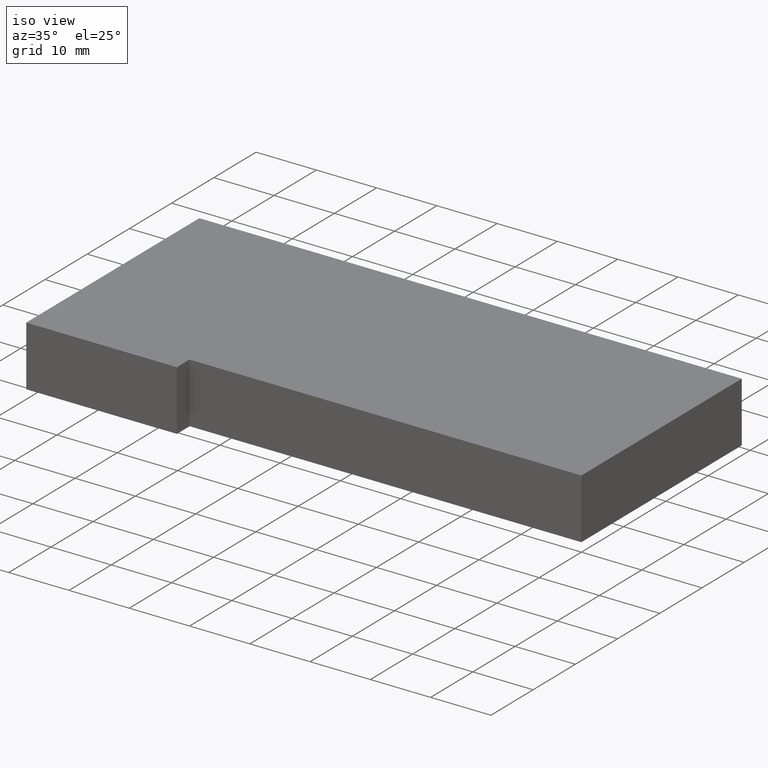
[diagram: clean part render]
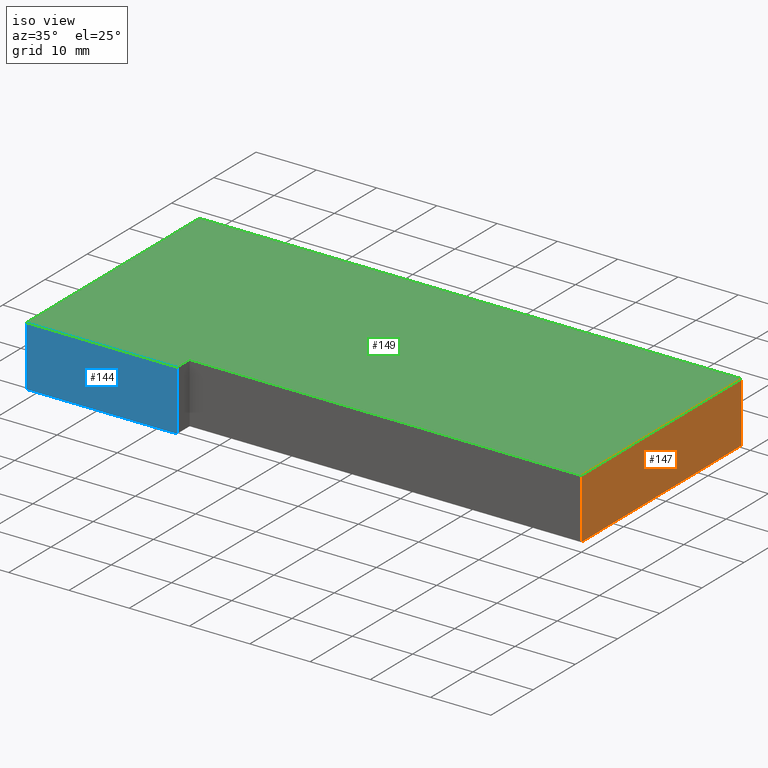
[diagram: same view with three faces highlighted in distinct colors, each labeled with its STEP entity id]
A machine part, iso view with three faces highlighted in distinct colors.
Their STEP definitions:

[orange] entity #147 — the highlighted planar face has unit normal (1, 0, 0).
#21=FACE_OUTER_BOUND('',#29,.T.);
#29=EDGE_LOOP('',(#120,#121,#122,#123));
#32=LINE('',#221,#50);
#46=LINE('',#248,#64);
#47=LINE('',#251,#65);
#48=LINE('',#252,#66);
#50=VECTOR('',#185,10.);
#64=VECTOR('',#207,10.);
#65=VECTOR('',#210,10.);
#66=VECTOR('',#211,10.);
#68=VERTEX_POINT('',#219);
#69=VERTEX_POINT('',#220);
#78=VERTEX_POINT('',#246);
#79=VERTEX_POINT('',#250);
#80=EDGE_CURVE('',#68,#69,#32,.T.);
#94=EDGE_CURVE('',#78,#69,#46,.T.);
#95=EDGE_CURVE('',#78,#79,#47,.T.);
#96=EDGE_CURVE('',#68,#79,#48,.T.);
#120=ORIENTED_EDGE('',*,*,#95,.T.);
#121=ORIENTED_EDGE('',*,*,#96,.F.);
#122=ORIENTED_EDGE('',*,*,#80,.T.);
#123=ORIENTED_EDGE('',*,*,#94,.F.);
#139=PLANE('',#178);
#147=ADVANCED_FACE('',(#21),#139,.T.);
#178=AXIS2_PLACEMENT_3D('',#249,#208,#209);
#185=DIRECTION('',(-3.06161699786838E-16,1.,0.));
#207=DIRECTION('',(0.,0.,-1.));
#208=DIRECTION('center_axis',(1.,3.06161699786838E-16,0.));
#209=DIRECTION('ref_axis',(0.,0.,-1.));
#210=DIRECTION('',(3.06161699786838E-16,-1.,0.));
#211=DIRECTION('',(0.,0.,1.));
#219=CARTESIAN_POINT('',(3.00678215216002E-15,2.22044604925031E-15,-5.));
#220=CARTESIAN_POINT('',(-8.62736243973984E-15,38.,-5.));
#221=CARTESIAN_POINT('',(-8.62736243973984E-15,38.,-5.));
#246=CARTESIAN_POINT('',(-8.62736243973984E-15,38.,5.));
#248=CARTESIAN_POINT('',(-8.62736243973984E-15,38.,0.));
#249=CARTESIAN_POINT('Origin',(-8.62736243973984E-15,38.,0.));
#250=CARTESIAN_POINT('',(3.00678215216002E-15,2.22044604925031E-15,5.));
#251=CARTESIAN_POINT('',(-8.62736243973984E-15,38.,5.));
#252=CARTESIAN_POINT('',(3.00678215216002E-15,2.22044604925031E-15,0.));

[blue] entity #144 — the highlighted planar face has unit normal (0, -1, 0).
#18=FACE_OUTER_BOUND('',#26,.T.);
#26=EDGE_LOOP('',(#108,#109,#110,#111));
#35=LINE('',#227,#53);
#39=LINE('',#235,#57);
#41=LINE('',#239,#59);
#42=LINE('',#240,#60);
#53=VECTOR('',#188,10.);
#57=VECTOR('',#194,10.);
#59=VECTOR('',#198,10.);
#60=VECTOR('',#199,10.);
#71=VERTEX_POINT('',#224);
#72=VERTEX_POINT('',#226);
#75=VERTEX_POINT('',#233);
#76=VERTEX_POINT('',#238);
#83=EDGE_CURVE('',#72,#71,#35,.T.);
#87=EDGE_CURVE('',#75,#71,#39,.T.);
#89=EDGE_CURVE('',#75,#76,#41,.T.);
#90=EDGE_CURVE('',#76,#72,#42,.T.);
#108=ORIENTED_EDGE('',*,*,#89,.T.);
#109=ORIENTED_EDGE('',*,*,#90,.T.);
#110=ORIENTED_EDGE('',*,*,#83,.T.);
#111=ORIENTED_EDGE('',*,*,#87,.F.);
#136=PLANE('',#175);
#144=ADVANCED_FACE('',(#18),#136,.T.);
#175=AXIS2_PLACEMENT_3D('',#237,#196,#197);
#188=DIRECTION('',(1.,3.5527136788005E-16,0.));
#194=DIRECTION('',(0.,0.,-1.));
#196=DIRECTION('center_axis',(3.5527136788005E-16,-1.,0.));
#197=DIRECTION('ref_axis',(0.,0.,-1.));
#198=DIRECTION('',(-1.,-3.5527136788005E-16,0.));
#199=DIRECTION('',(0.,0.,-1.));
#224=CARTESIAN_POINT('',(-65.,-3.00000000000002,-5.));
#226=CARTESIAN_POINT('',(-90.,-3.00000000000002,-5.));
#227=CARTESIAN_POINT('',(-65.,-3.00000000000002,-5.));
#233=CARTESIAN_POINT('',(-65.,-3.00000000000002,5.));
#235=CARTESIAN_POINT('',(-65.,-3.00000000000002,0.));
#237=CARTESIAN_POINT('Origin',(-65.,-3.00000000000002,0.));
#238=CARTESIAN_POINT('',(-90.,-3.00000000000002,5.));
#239=CARTESIAN_POINT('',(-65.,-3.00000000000002,5.));
#240=CARTESIAN_POINT('',(-90.,-3.00000000000002,0.));

[green] entity #149 — the highlighted planar face has unit normal (0, 0, 1).
#23=FACE_OUTER_BOUND('',#31,.T.);
#31=EDGE_LOOP('',(#128,#129,#130,#131,#132,#133));
#38=LINE('',#234,#56);
#41=LINE('',#239,#59);
#43=LINE('',#243,#61);
#45=LINE('',#247,#63);
#47=LINE('',#251,#65);
#49=LINE('',#254,#67);
#56=VECTOR('',#193,10.);
#59=VECTOR('',#198,10.);
#61=VECTOR('',#202,10.);
#63=VECTOR('',#206,10.);
#65=VECTOR('',#210,10.);
#67=VECTOR('',#214,10.);
#74=VERTEX_POINT('',#232);
#75=VERTEX_POINT('',#233);
#76=VERTEX_POINT('',#238);
#77=VERTEX_POINT('',#242);
#78=VERTEX_POINT('',#246);
#79=VERTEX_POINT('',#250);
#86=EDGE_CURVE('',#74,#75,#38,.T.);
#89=EDGE_CURVE('',#75,#76,#41,.T.);
#91=EDGE_CURVE('',#76,#77,#43,.T.);
#93=EDGE_CURVE('',#77,#78,#45,.T.);
#95=EDGE_CURVE('',#78,#79,#47,.T.);
#97=EDGE_CURVE('',#79,#74,#49,.T.);
#128=ORIENTED_EDGE('',*,*,#86,.F.);
#129=ORIENTED_EDGE('',*,*,#97,.F.);
#130=ORIENTED_EDGE('',*,*,#95,.F.);
#131=ORIENTED_EDGE('',*,*,#93,.F.);
#132=ORIENTED_EDGE('',*,*,#91,.F.);
#133=ORIENTED_EDGE('',*,*,#89,.F.);
#141=PLANE('',#180);
#149=ADVANCED_FACE('',(#23),#141,.T.);
#180=AXIS2_PLACEMENT_3D('',#255,#215,#216);
#193=DIRECTION('',(1.1842378929335E-14,-1.,0.));
#198=DIRECTION('',(-1.,-3.5527136788005E-16,0.));
#202=DIRECTION('',(-8.66515531414756E-16,1.,0.));
#206=DIRECTION('',(1.,2.96059473233375E-16,0.));
#210=DIRECTION('',(3.06161699786838E-16,-1.,0.));
#214=DIRECTION('',(-1.,-1.23832568131267E-16,0.));
#215=DIRECTION('center_axis',(0.,0.,1.));
#216=DIRECTION('ref_axis',(1.,0.,0.));
#232=CARTESIAN_POINT('',(-65.,-5.82867087928207E-15,5.));
#233=CARTESIAN_POINT('',(-65.,-3.00000000000002,5.));
#234=CARTESIAN_POINT('',(-65.,-5.82867087928207E-15,5.));
#238=CARTESIAN_POINT('',(-90.,-3.00000000000002,5.));
#239=CARTESIAN_POINT('',(-65.,-3.00000000000002,5.));
#242=CARTESIAN_POINT('',(-90.,38.,5.));
#243=CARTESIAN_POINT('',(-90.,-3.00000000000002,5.));
#246=CARTESIAN_POINT('',(-8.62736243973984E-15,38.,5.));
#247=CARTESIAN_POINT('',(-90.,38.,5.));
#250=CARTESIAN_POINT('',(3.00678215216002E-15,2.22044604925031E-15,5.));
#251=CARTESIAN_POINT('',(-8.62736243973984E-15,38.,5.));
#254=CARTESIAN_POINT('',(3.00678215216002E-15,2.22044604925031E-15,5.));
#255=CARTESIAN_POINT('Origin',(-45.7442748091603,18.2442748091603,5.));